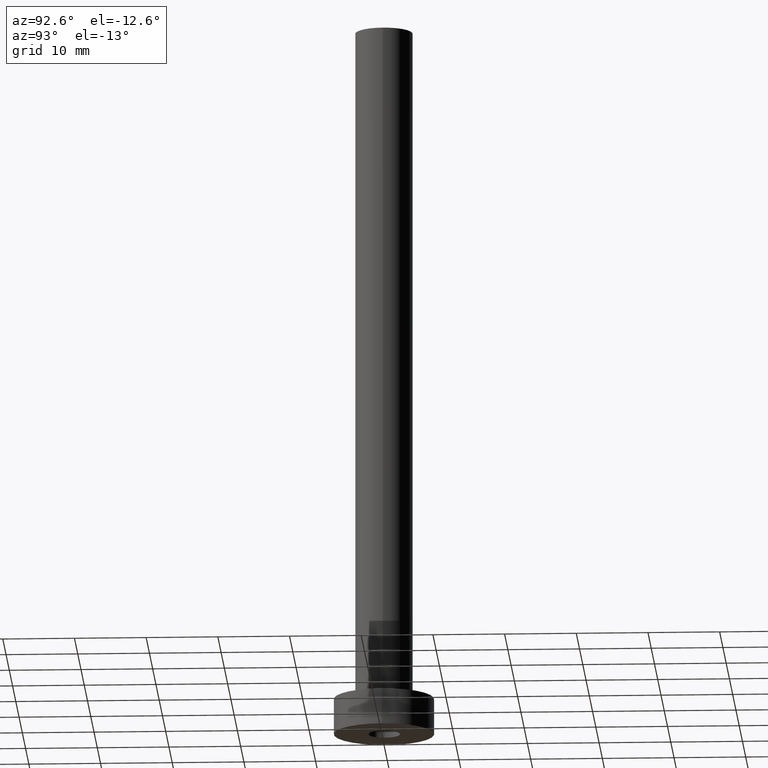
[diagram: clean part render]
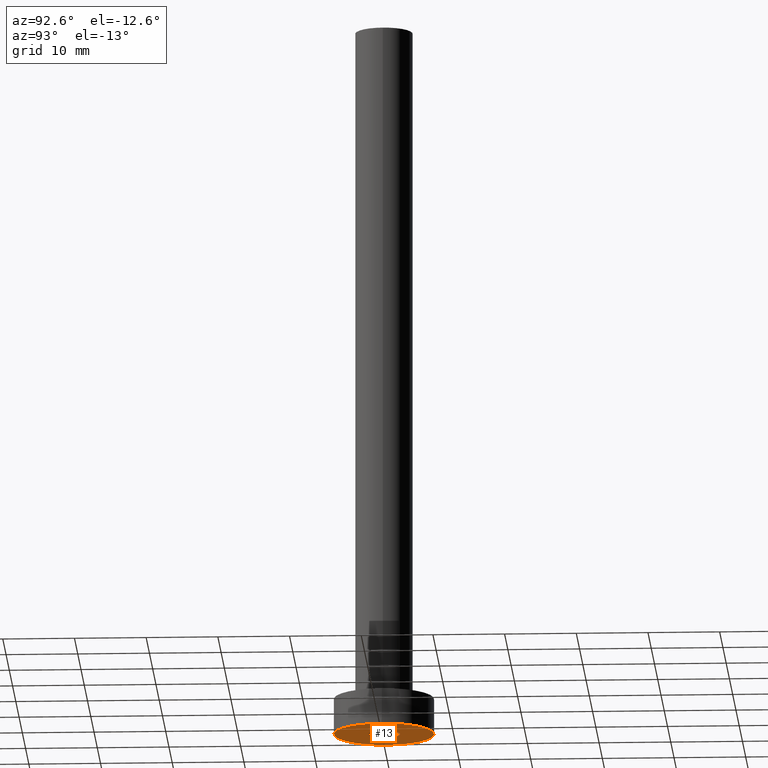
[diagram: same view with one face highlighted and labeled with its STEP entity id]
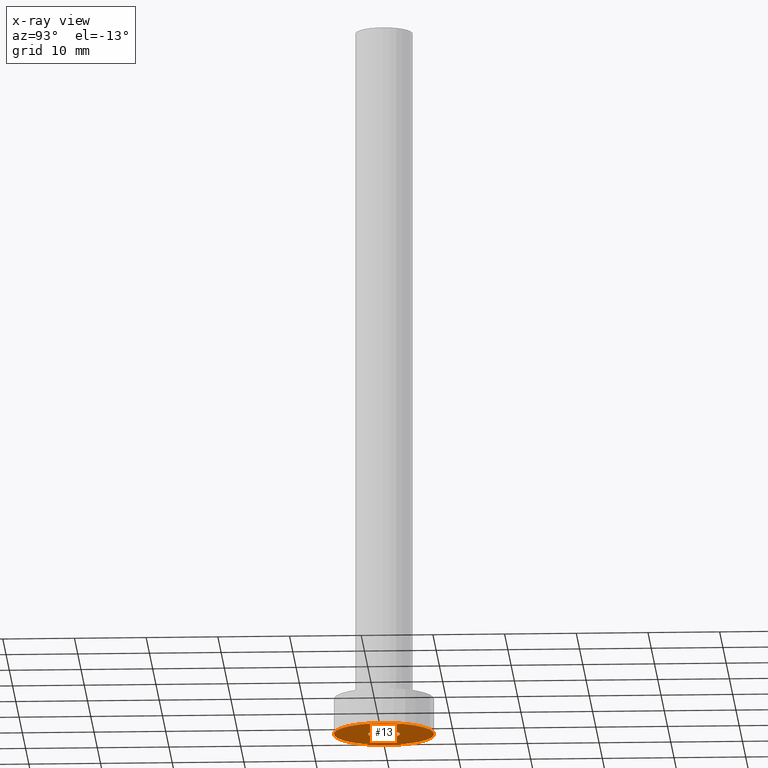
[diagram: x-ray of the same camera — body ghosted, the highlighted face saturated]
A machine part, auxiliary view. The second image highlights one B-rep face of the part: STEP entity #13.
The next image is the same camera in x-ray: the body ghosted, the highlighted face saturated — about 0% of this face is hidden behind the body in this view.
In plain terms, the highlighted planar face has unit normal (0, 0, 1).
Its self-contained STEP definition (entity closure, byte-faithful):
#9 = CARTESIAN_POINT ( 'NONE',  ( -7.000000000000000000, 0.000000000000000000, 0.000000000000000000 ) ) ;
#13 = ADVANCED_FACE ( 'NONE', ( #445, #19 ), #122, .F. ) ;
#18 = DIRECTION ( 'NONE',  ( 1.000000000000000000, 0.000000000000000000, 0.000000000000000000 ) ) ;
#19 = FACE_OUTER_BOUND ( 'NONE', #374, .T. ) ;
#28 = DIRECTION ( 'NONE',  ( -0.000000000000000000, -0.000000000000000000, -1.000000000000000000 ) ) ;
#52 = DIRECTION ( 'NONE',  ( 1.000000000000000000, 0.000000000000000000, -0.000000000000000000 ) ) ;
#54 = CARTESIAN_POINT ( 'NONE',  ( 2.250000000000000000, 2.755455298081544285E-16, 0.000000000000000000 ) ) ;
#59 = CARTESIAN_POINT ( 'NONE',  ( 0.000000000000000000, 0.000000000000000000, 0.000000000000000000 ) ) ;
#64 = CIRCLE ( 'NONE', #255, 7.000000000000000000 ) ;
#88 = CARTESIAN_POINT ( 'NONE',  ( 0.000000000000000000, 0.000000000000000000, 0.000000000000000000 ) ) ;
#122 = PLANE ( 'NONE',  #278 ) ;
#152 = VERTEX_POINT ( 'NONE', #9 ) ;
#173 = AXIS2_PLACEMENT_3D ( 'NONE', #88, #367, #303 ) ;
#183 = ORIENTED_EDGE ( 'NONE', *, *, #263, .F. ) ;
#194 = EDGE_CURVE ( 'NONE', #328, #152, #383, .T. ) ;
#255 = AXIS2_PLACEMENT_3D ( 'NONE', #59, #308, #307 ) ;
#258 = EDGE_LOOP ( 'NONE', ( #385, #183 ) ) ;
#259 = CARTESIAN_POINT ( 'NONE',  ( 0.000000000000000000, 0.000000000000000000, 0.000000000000000000 ) ) ;
#263 = EDGE_CURVE ( 'NONE', #403, #433, #409, .T. ) ;
#267 = AXIS2_PLACEMENT_3D ( 'NONE', #337, #28, #18 ) ;
#271 = CARTESIAN_POINT ( 'NONE',  ( 0.000000000000000000, 0.000000000000000000, 0.000000000000000000 ) ) ;
#277 = ORIENTED_EDGE ( 'NONE', *, *, #286, .F. ) ;
#278 = AXIS2_PLACEMENT_3D ( 'NONE', #271, #413, #52 ) ;
#286 = EDGE_CURVE ( 'NONE', #152, #328, #64, .T. ) ;
#303 = DIRECTION ( 'NONE',  ( 1.000000000000000000, 0.000000000000000000, 0.000000000000000000 ) ) ;
#306 = DIRECTION ( 'NONE',  ( 1.000000000000000000, 0.000000000000000000, 0.000000000000000000 ) ) ;
#307 = DIRECTION ( 'NONE',  ( 1.000000000000000000, 0.000000000000000000, 0.000000000000000000 ) ) ;
#308 = DIRECTION ( 'NONE',  ( 0.000000000000000000, 0.000000000000000000, 1.000000000000000000 ) ) ;
#328 = VERTEX_POINT ( 'NONE', #329 ) ;
#329 = CARTESIAN_POINT ( 'NONE',  ( 7.000000000000000000, 8.572527594031473190E-16, 0.000000000000000000 ) ) ;
#337 = CARTESIAN_POINT ( 'NONE',  ( 0.000000000000000000, 0.000000000000000000, 0.000000000000000000 ) ) ;
#365 = DIRECTION ( 'NONE',  ( -0.000000000000000000, -0.000000000000000000, -1.000000000000000000 ) ) ;
#367 = DIRECTION ( 'NONE',  ( 0.000000000000000000, 0.000000000000000000, 1.000000000000000000 ) ) ;
#368 = ORIENTED_EDGE ( 'NONE', *, *, #194, .F. ) ;
#374 = EDGE_LOOP ( 'NONE', ( #277, #368 ) ) ;
#383 = CIRCLE ( 'NONE', #173, 7.000000000000000000 ) ;
#385 = ORIENTED_EDGE ( 'NONE', *, *, #393, .F. ) ;
#393 = EDGE_CURVE ( 'NONE', #433, #403, #431, .T. ) ;
#403 = VERTEX_POINT ( 'NONE', #54 ) ;
#409 = CIRCLE ( 'NONE', #267, 2.250000000000000000 ) ;
#413 = DIRECTION ( 'NONE',  ( 0.000000000000000000, 0.000000000000000000, 1.000000000000000000 ) ) ;
#431 = CIRCLE ( 'NONE', #460, 2.250000000000000000 ) ;
#433 = VERTEX_POINT ( 'NONE', #439 ) ;
#439 = CARTESIAN_POINT ( 'NONE',  ( -2.250000000000000000, 0.000000000000000000, 0.000000000000000000 ) ) ;
#445 = FACE_BOUND ( 'NONE', #258, .T. ) ;
#460 = AXIS2_PLACEMENT_3D ( 'NONE', #259, #365, #306 ) ;